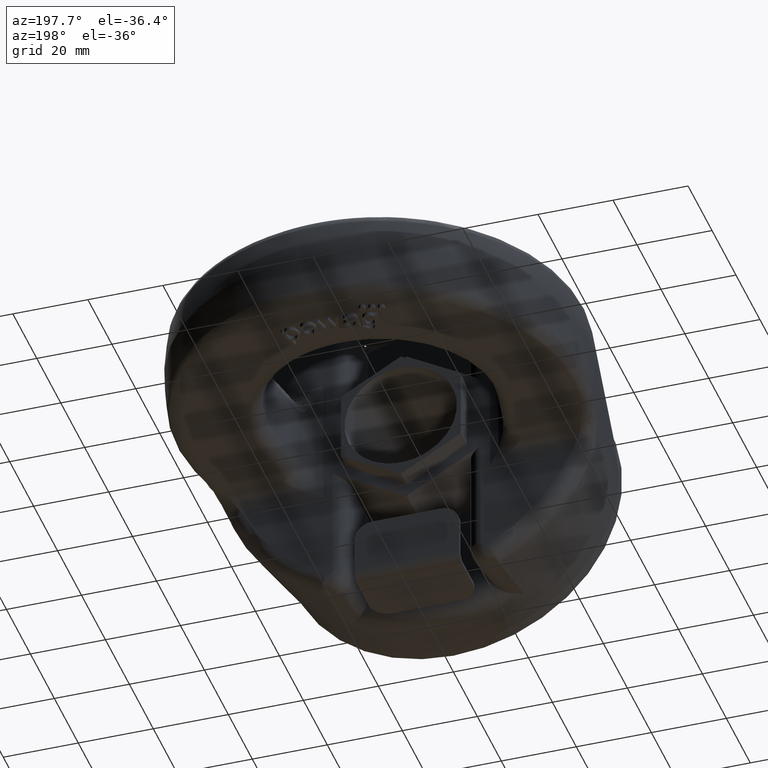
[diagram: clean part render]
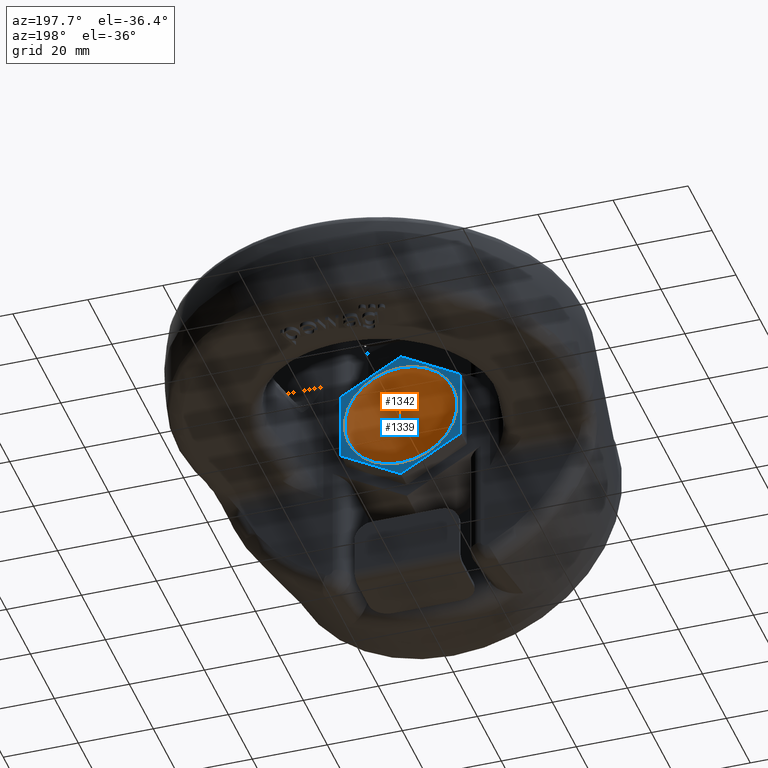
[diagram: same view with the hole feature highlighted: cylindrical wall and planar end face, labeled with their STEP entity ids]
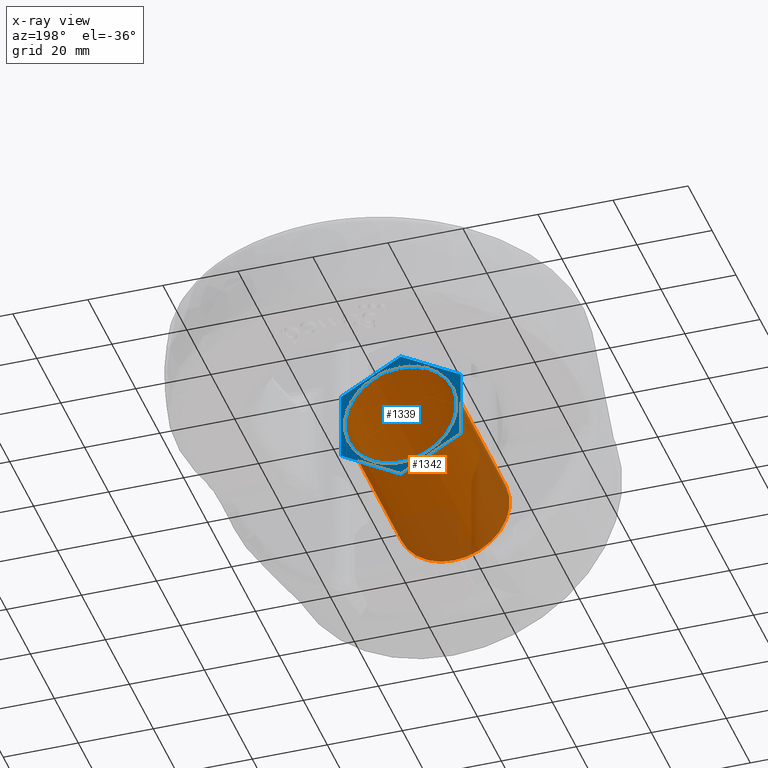
[diagram: x-ray of the same camera — body ghosted, the hole faces saturated]
A machine part, auxiliary view. The highlighted faces form one hole feature of diameter 30 mm: the cylindrical wall (entity #1342, orange) and its adjacent planar end face (entity #1339, blue) — they share a circular edge in the B-rep.
The next image is the same camera in x-ray (body ghosted, the hole faces saturated) — the bore reads through the body.
Wall:
#1070=CYLINDRICAL_SURFACE('',#5152,15.);
#1342=ADVANCED_FACE('',(#1789,#1790),#1070,.F.);
#1699=CIRCLE('',#5138,15.);
#1701=CIRCLE('',#5146,15.);
#1789=FACE_BOUND('',#1860,.T.);
#1790=FACE_BOUND('',#1861,.T.);
#1860=EDGE_LOOP('',(#2874));
#1861=EDGE_LOOP('',(#2875));
#2874=ORIENTED_EDGE('',*,*,#4398,.F.);
#2875=ORIENTED_EDGE('',*,*,#4387,.F.);
#3997=VERTEX_POINT('',#6842);
#4004=VERTEX_POINT('',#6866);
#4387=EDGE_CURVE('',#3997,#3997,#1699,.T.);
#4398=EDGE_CURVE('',#4004,#4004,#1701,.T.);
#5138=AXIS2_PLACEMENT_3D('',#6841,#5514,#5515);
#5146=AXIS2_PLACEMENT_3D('',#6865,#5539,#5540);
#5152=AXIS2_PLACEMENT_3D('',#6876,#5554,#5555);
#5514=DIRECTION('',(0.,1.,0.));
#5515=DIRECTION('',(0.,0.,1.));
#5539=DIRECTION('',(0.,-1.,0.));
#5540=DIRECTION('',(0.,0.,-1.));
#5554=DIRECTION('',(0.,-1.,0.));
#5555=DIRECTION('',(0.,0.,-1.));
#6841=CARTESIAN_POINT('',(0.,0.,0.));
#6842=CARTESIAN_POINT('',(0.,0.,15.));
#6865=CARTESIAN_POINT('',(0.,44.,0.));
#6866=CARTESIAN_POINT('',(0.,44.,-15.));
#6876=CARTESIAN_POINT('',(0.,44.,0.));
End face:
#1339=ADVANCED_FACE('',(#1787,#1788),#1575,.T.);
#1575=PLANE('',#5147);
#1701=CIRCLE('',#5146,15.);
#1787=FACE_BOUND('',#1856,.T.);
#1788=FACE_BOUND('',#1857,.T.);
#1856=EDGE_LOOP('',(#2857));
#1857=EDGE_LOOP('',(#2858,#2859,#2860,#2861,#2862,#2863));
#2168=LINE('',#6849,#2438);
#2170=LINE('',#6853,#2440);
#2174=LINE('',#6861,#2444);
#2175=LINE('',#6863,#2445);
#2176=LINE('',#6867,#2446);
#2177=LINE('',#6869,#2447);
#2438=VECTOR('',#5523,1.);
#2440=VECTOR('',#5527,1.);
#2444=VECTOR('',#5533,1.);
#2445=VECTOR('',#5536,1.);
#2446=VECTOR('',#5541,1.);
#2447=VECTOR('',#5542,1.);
#2857=ORIENTED_EDGE('',*,*,#4398,.T.);
#2858=ORIENTED_EDGE('',*,*,#4399,.T.);
#2859=ORIENTED_EDGE('',*,*,#4392,.T.);
#2860=ORIENTED_EDGE('',*,*,#4396,.T.);
#2861=ORIENTED_EDGE('',*,*,#4397,.T.);
#2862=ORIENTED_EDGE('',*,*,#4390,.T.);
#2863=ORIENTED_EDGE('',*,*,#4400,.T.);
#3999=VERTEX_POINT('',#6848);
#4000=VERTEX_POINT('',#6850);
#4001=VERTEX_POINT('',#6854);
#4002=VERTEX_POINT('',#6855);
#4003=VERTEX_POINT('',#6860);
#4004=VERTEX_POINT('',#6866);
#4005=VERTEX_POINT('',#6868);
#4390=EDGE_CURVE('',#4000,#3999,#2168,.T.);
#4392=EDGE_CURVE('',#4001,#4002,#2170,.T.);
#4396=EDGE_CURVE('',#4002,#4003,#2174,.T.);
#4397=EDGE_CURVE('',#4003,#4000,#2175,.T.);
#4398=EDGE_CURVE('',#4004,#4004,#1701,.T.);
#4399=EDGE_CURVE('',#4005,#4001,#2176,.T.);
#4400=EDGE_CURVE('',#3999,#4005,#2177,.T.);
#5146=AXIS2_PLACEMENT_3D('',#6865,#5539,#5540);
#5147=AXIS2_PLACEMENT_3D('',#6870,#5543,#5544);
#5523=DIRECTION('',(0.,0.,-1.));
#5527=DIRECTION('',(0.,0.,1.));
#5533=DIRECTION('',(0.866025403784439,0.,0.499999999999999));
#5536=DIRECTION('',(0.866025403784439,0.,-0.499999999999999));
#5539=DIRECTION('',(0.,-1.,0.));
#5540=DIRECTION('',(0.,0.,-1.));
#5541=DIRECTION('',(-0.86602540378444,0.,0.499999999999997));
#5542=DIRECTION('',(-0.866025403784438,0.,-0.500000000000001));
#5543=DIRECTION('',(0.,1.,0.));
#5544=DIRECTION('',(0.,0.,1.));
#6848=CARTESIAN_POINT('',(16.,44.,-9.23760430703397));
#6849=CARTESIAN_POINT('',(16.,44.,9.23760430703401));
#6850=CARTESIAN_POINT('',(16.,44.,9.23760430703401));
#6853=CARTESIAN_POINT('',(-16.,44.,-9.23760430703401));
#6854=CARTESIAN_POINT('',(-16.,44.,-9.23760430703404));
#6855=CARTESIAN_POINT('',(-16.,44.,9.237604307034));
#6860=CARTESIAN_POINT('',(3.46944695195361E-15,44.,18.475208614068));
#6861=CARTESIAN_POINT('',(-16.,44.,9.237604307034));
#6863=CARTESIAN_POINT('',(0.,44.,18.475208614068));
#6865=CARTESIAN_POINT('',(0.,44.,0.));
#6866=CARTESIAN_POINT('',(0.,44.,-15.));
#6867=CARTESIAN_POINT('',(4.32857644854624E-14,44.,-18.475208614068));
#6868=CARTESIAN_POINT('',(3.98163175335088E-14,44.,-18.475208614068));
#6869=CARTESIAN_POINT('',(16.,44.,-9.23760430703397));
#6870=CARTESIAN_POINT('',(0.,44.,0.));